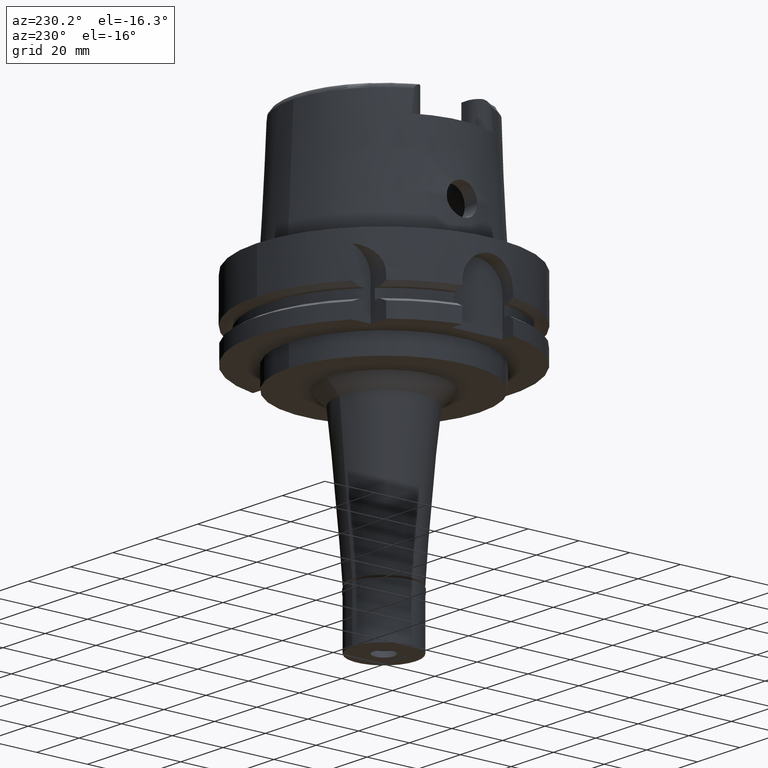
[diagram: clean part render]
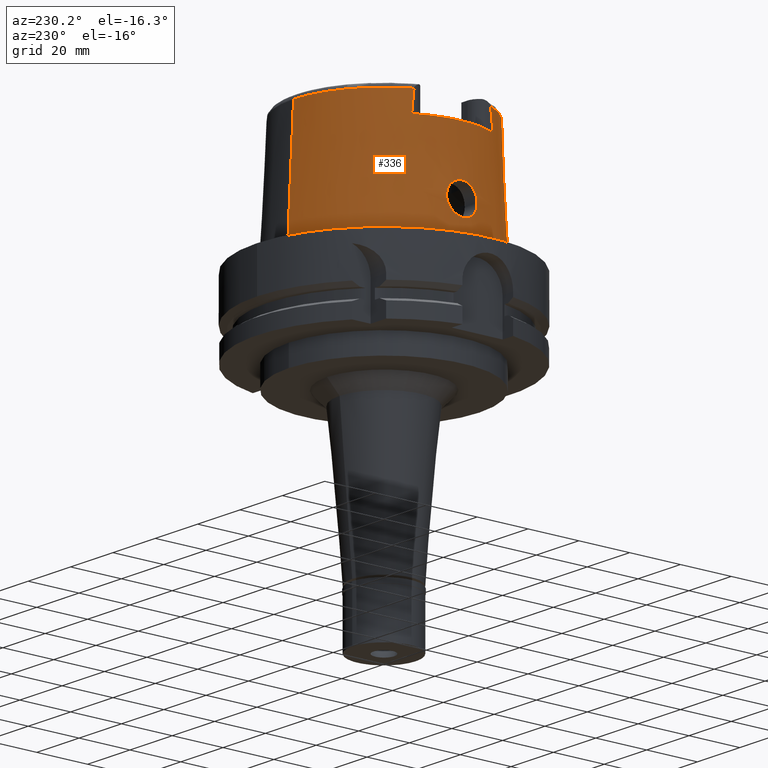
[diagram: same view with one face highlighted and labeled with its STEP entity id]
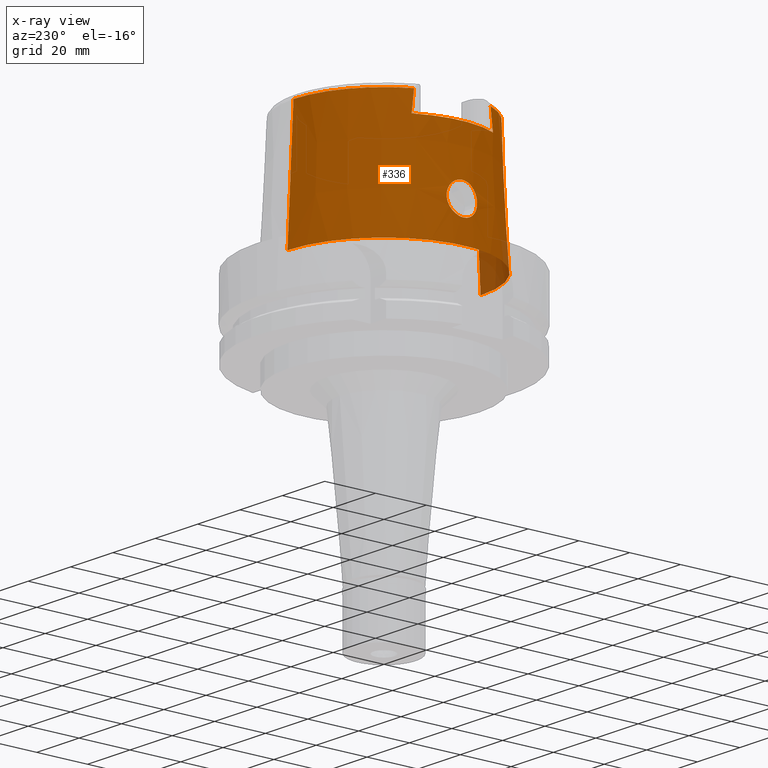
[diagram: x-ray of the same camera — body ghosted, the highlighted face saturated]
A machine part, auxiliary view. The second image highlights one B-rep face of the part: STEP entity #336.
The next image is the same camera in x-ray: the body ghosted, the highlighted face saturated — about 4% of this face is hidden behind the body in this view.
In plain terms, the highlighted conical surface has half-angle 2.862 deg.
Its self-contained STEP definition (entity closure, byte-faithful):
#7 = CARTESIAN_POINT ( 'NONE',  ( -36.73222397238689751, 5.952851843317341185, 15.77502274204015187 ) ) ;
#32 = CARTESIAN_POINT ( 'NONE',  ( -36.87024692486052402, 2.963107216956291534, 20.21838647945622469 ) ) ;
#78 = DIRECTION ( 'NONE',  ( 0.0000000000000000000, 0.0000000000000000000, -1.000000000000000000 ) ) ;
#131 = DIRECTION ( 'NONE',  ( 0.0000000000000000000, 0.0000000000000000000, -1.000000000000000000 ) ) ;
#137 = CARTESIAN_POINT ( 'NONE',  ( -37.45411032894990910, 2.329076586397910820, 9.470486692881159740 ) ) ;
#154 = EDGE_CURVE ( 'NONE', #3633, #4360, #4780, .T. ) ;
#166 = CARTESIAN_POINT ( 'NONE',  ( -37.16137327088202369, 4.585331932553313727, 11.12902026860914617 ) ) ;
#168 = CARTESIAN_POINT ( 'NONE',  ( -36.94998175922999906, -0.7275768783304984444, 20.99999999999998224 ) ) ;
#189 = EDGE_CURVE ( 'NONE', #1724, #1978, #1750, .T. ) ;
#234 = VERTEX_POINT ( 'NONE', #2886 ) ;
#259 = CARTESIAN_POINT ( 'NONE',  ( -37.07378927750864506, 5.030469763216260937, 11.72974398574473476 ) ) ;
#260 = CARTESIAN_POINT ( 'NONE',  ( -36.76839937084008625, -4.640091725944174073, 18.80537962105099226 ) ) ;
#284 = CARTESIAN_POINT ( 'NONE',  ( -36.76538821480236408, -5.999950589284440916, 14.96596387368550296 ) ) ;
#289 = CARTESIAN_POINT ( 'NONE',  ( -32.24999999999000266, 15.99793480980999938, 40.00000000000000000 ) ) ;
#292 = VERTEX_POINT ( 'NONE', #957 ) ;
#316 = CARTESIAN_POINT ( 'NONE',  ( -37.17914133187959180, -4.492299438688203139, 11.01777527074714413 ) ) ;
#336 = ADVANCED_FACE ( 'NONE', ( #1880, #3238 ), #1191, .T. ) ;
#350 = CARTESIAN_POINT ( 'NONE',  ( -36.71806516377513674, -5.583431881472558089, 17.19690449831312407 ) ) ;
#370 = CARTESIAN_POINT ( 'NONE',  ( -36.80999435884332627, 4.000992182659792284, 19.47314503020498933 ) ) ;
#377 = CARTESIAN_POINT ( 'NONE',  ( -36.71645835032150273, -5.675513334098447160, 16.95089833007983060 ) ) ;
#399 = CARTESIAN_POINT ( 'NONE',  ( -36.72708380242317361, 5.924749746795881400, 15.96722537825094612 ) ) ;
#434 = CARTESIAN_POINT ( 'NONE',  ( -36.88778919737365669, 2.610152271103167720, 20.40612584990347145 ) ) ;
#458 = CARTESIAN_POINT ( 'NONE',  ( -36.90165607839175266, 2.290595083130572807, 20.54555679129071066 ) ) ;
#552 = CARTESIAN_POINT ( 'NONE',  ( -37.21388712427825141, 4.285728611259719045, 10.80087120208853335 ) ) ;
#571 = CARTESIAN_POINT ( 'NONE',  ( -32.25000000000000000, 15.68473281745007242, 42.78334884632611335 ) ) ;
#634 = CARTESIAN_POINT ( 'NONE',  ( -36.94593836789520225, 0.7403560724001332360, 20.96707402515024654 ) ) ;
#649 = ORIENTED_EDGE ( 'NONE', *, *, #189, .F. ) ;
#672 = EDGE_CURVE ( 'NONE', #3633, #5378, #4613, .T. ) ;
#673 = CARTESIAN_POINT ( 'NONE',  ( -36.74861107662850657, -4.956256206563224964, 18.38728264032870996 ) ) ;
#701 = CARTESIAN_POINT ( 'NONE',  ( -36.87485578568156086, 2.872834853100405095, 20.26845260039856456 ) ) ;
#702 = CARTESIAN_POINT ( 'NONE',  ( -37.34547715369878773, -3.376910024075643335, 10.03665437514892922 ) ) ;
#731 = CARTESIAN_POINT ( 'NONE',  ( -36.82325382512017597, -5.928849360796538015, 14.05789465290355089 ) ) ;
#764 = CARTESIAN_POINT ( 'NONE',  ( -36.87052040339790437, -5.816984308525563918, 13.47751437886977044 ) ) ;
#770 = DIRECTION ( 'NONE',  ( 0.0000000000000000000, 0.0000000000000000000, 1.000000000000000000 ) ) ;
#792 = CARTESIAN_POINT ( 'NONE',  ( -36.71651147190863185, -5.721671603622781710, 16.80895093120795636 ) ) ;
#795 = CARTESIAN_POINT ( 'NONE',  ( -36.94998175923000616, 0.0000000000000000000, 21.00000000000000000 ) ) ;
#813 = CARTESIAN_POINT ( 'NONE',  ( -36.72203483975983573, 5.457215674029285424, 17.49414446089354414 ) ) ;
#835 = DIRECTION ( 'NONE',  ( 5.154182075151068004E-05, -0.04993927430816067631, -0.9987522546783135224 ) ) ;
#839 = VECTOR ( 'NONE', #835, 1000.000000000000227 ) ;
#840 = CARTESIAN_POINT ( 'NONE',  ( -36.85909546358855948, 3.172163527087960677, 20.09341556294793563 ) ) ;
#849 = CARTESIAN_POINT ( 'NONE',  ( -36.79130458637631307, -4.284925548454895150, 19.19995471801758313 ) ) ;
#872 = CARTESIAN_POINT ( 'NONE',  ( -36.94616164277810100, 5.562167962683551181, 12.75003754848569670 ) ) ;
#881 = CARTESIAN_POINT ( 'NONE',  ( -36.89910813406788037, -2.351562161418368824, 20.52003592923240305 ) ) ;
#902 = CARTESIAN_POINT ( 'NONE',  ( -36.80178370355619677, 4.127029021777901541, 19.35567122892741665 ) ) ;
#927 = CARTESIAN_POINT ( 'NONE',  ( -37.37902789548586213, 3.101562621163882483, 9.860011115134664550 ) ) ;
#936 = VERTEX_POINT ( 'NONE', #5330 ) ;
#957 = CARTESIAN_POINT ( 'NONE',  ( -37.55000165825000380, 1.571614468376999917E-13, 9.000000000000000000 ) ) ;
#981 = CARTESIAN_POINT ( 'NONE',  ( -37.12653753855521899, 4.772698272454461765, 11.35852183169556895 ) ) ;
#983 = EDGE_LOOP ( 'NONE', ( #4553, #4306 ) ) ;
#992 = CARTESIAN_POINT ( 'NONE',  ( -36.92875395472230338, 1.513412812140720654, 20.80957036496137746 ) ) ;
#1004 = CARTESIAN_POINT ( 'NONE',  ( -37.42939305294946450, 2.609398049164892708, 9.596396641083952517 ) ) ;
#1014 = LINE ( 'NONE', #2281, #5267 ) ;
#1067 = VERTEX_POINT ( 'NONE', #1131 ) ;
#1096 = CARTESIAN_POINT ( 'NONE',  ( -36.73018664405558553, -5.271004622528247197, 17.89294786533746162 ) ) ;
#1105 = CARTESIAN_POINT ( 'NONE',  ( -32.25000136840999687, 15.06443227128000117, 48.09991931309000535 ) ) ;
#1128 = CARTESIAN_POINT ( 'NONE',  ( -36.76073973878740730, 5.999766734502983923, 15.05800298344849786 ) ) ;
#1130 = CARTESIAN_POINT ( 'NONE',  ( -37.06283329661884096, -5.081388667905541112, 11.80356403590954351 ) ) ;
#1131 = CARTESIAN_POINT ( 'NONE',  ( 0.0000000000000000000, 38.00001658251999714, 1.023181539494999863E-12 ) ) ;
#1156 = CARTESIAN_POINT ( 'NONE',  ( -36.95852751307974415, -5.516639045516826378, 12.64048135459093736 ) ) ;
#1175 = B_SPLINE_CURVE_WITH_KNOTS ( 'NONE', 3,
 ( #1105, #4435, #571, #1452 ),
 .UNSPECIFIED., .F., .F.,
 ( 4, 4 ),
 ( 0.0000000000000000000, 1.000000000000000000 ),
 .UNSPECIFIED. ) ;
#1181 = CARTESIAN_POINT ( 'NONE',  ( -37.22574063560442426, -4.214384530066889845, 10.72928565813577428 ) ) ;
#1191 = CONICAL_SURFACE ( 'NONE', #4261, 36.79747973821000073, 0.04996004983832824653 ) ;
#1192 = ORIENTED_EDGE ( 'NONE', *, *, #5295, .T. ) ;
#1216 = CARTESIAN_POINT ( 'NONE',  ( -36.80914001600856267, -5.955815480468006129, 14.24908740679103047 ) ) ;
#1222 = ORIENTED_EDGE ( 'NONE', *, *, #672, .T. ) ;
#1239 = CARTESIAN_POINT ( 'NONE',  ( -36.75506156196929908, 5.997721863860697944, 15.17692254233485372 ) ) ;
#1268 = CARTESIAN_POINT ( 'NONE',  ( -36.75844081680122599, 5.999118688186413806, 15.10554704917737290 ) ) ;
#1297 = CARTESIAN_POINT ( 'NONE',  ( -36.76197872442156012, 5.999951483205046010, 15.03293113263376846 ) ) ;
#1309 = CARTESIAN_POINT ( 'NONE',  ( -36.84416996310689285, -3.433627093052130430, 19.92134582657802966 ) ) ;
#1334 = CARTESIAN_POINT ( 'NONE',  ( -37.04829448806614778, 5.147646633336384170, 11.91705264490105698 ) ) ;
#1360 = CARTESIAN_POINT ( 'NONE',  ( -37.21681431173084320, 4.268413451087587518, 10.78327152861438520 ) ) ;
#1380 = CARTESIAN_POINT ( 'NONE',  ( -37.19926369539058442, 4.371459071789489670, 10.88969431729168846 ) ) ;
#1411 = CARTESIAN_POINT ( 'NONE',  ( -37.45640736480521582, 2.301328483589966112, 9.458876450406730640 ) ) ;
#1415 = CARTESIAN_POINT ( 'NONE',  ( -36.81088283238016601, -3.979713635888096679, 19.49454454982750562 ) ) ;
#1439 = CARTESIAN_POINT ( 'NONE',  ( -36.88702964774192594, -2.627647762247636631, 20.39566145630359983 ) ) ;
#1444 = CARTESIAN_POINT ( 'NONE',  ( -36.90321622673614854, 2.252589718323464218, 20.56112789476859959 ) ) ;
#1452 = CARTESIAN_POINT ( 'NONE',  ( -32.24999999999000266, 15.99793480980999938, 40.00000000000000000 ) ) ;
#1454 = CARTESIAN_POINT ( 'NONE',  ( 0.0000000000000000000, 0.0000000000000000000, 24.04993926899999934 ) ) ;
#1522 = CARTESIAN_POINT ( 'NONE',  ( -37.55000165825001801, -0.3718779885888385262, 8.999999999999992895 ) ) ;
#1546 = CARTESIAN_POINT ( 'NONE',  ( -36.73210036387570199, 5.234123711820268809, 17.93896558200397706 ) ) ;
#1548 = CARTESIAN_POINT ( 'NONE',  ( -37.32407278596627265, -3.545300070120514402, 10.15468677506185990 ) ) ;
#1584 = CARTESIAN_POINT ( 'NONE',  ( -37.23094108370881372, -4.182301341435276321, 10.69782301262424085 ) ) ;
#1615 = CARTESIAN_POINT ( 'NONE',  ( -36.71772777302972202, -5.806634444795101047, 16.52391406234234950 ) ) ;
#1642 = CARTESIAN_POINT ( 'NONE',  ( -37.46539917342017390, -2.189494349266547513, 9.413656951236012205 ) ) ;
#1666 = CARTESIAN_POINT ( 'NONE',  ( -36.93938817957329235, 5.586604244410321662, 12.81115038929426397 ) ) ;
#1677 = CARTESIAN_POINT ( 'NONE',  ( -36.71887119525074183, -5.552477457300488695, 17.27376756973787408 ) ) ;
#1698 = CARTESIAN_POINT ( 'NONE',  ( -32.24999876011999334, -15.99794043148000000, 40.00000000000000000 ) ) ;
#1701 = CARTESIAN_POINT ( 'NONE',  ( -36.71936418535728563, 5.535364053710887688, 17.31513712874266631 ) ) ;
#1705 = ORIENTED_EDGE ( 'NONE', *, *, #3245, .T. ) ;
#1724 = VERTEX_POINT ( 'NONE', #4941 ) ;
#1728 = CARTESIAN_POINT ( 'NONE',  ( -36.85031012315031518, 3.329293841551034028, 19.99158831933071312 ) ) ;
#1750 = LINE ( 'NONE', #5088, #839 ) ;
#1753 = CARTESIAN_POINT ( 'NONE',  ( -37.03009072989203077, 5.228432817189635706, 12.05469673884362436 ) ) ;
#1799 = DIRECTION ( 'NONE',  ( -0.8958345712659759874, -0.4443876921390880197, 0.0000000000000000000 ) ) ;
#1806 = CARTESIAN_POINT ( 'NONE',  ( -37.27312626804616258, 3.933437812010391887, 10.44691527890669391 ) ) ;
#1839 = CARTESIAN_POINT ( 'NONE',  ( -36.94998175923000616, 0.3625466182059573494, 20.99999999999999645 ) ) ;
#1842 = CIRCLE ( 'NONE', #2910, 35.59494289391000166 ) ;
#1860 = CARTESIAN_POINT ( 'NONE',  ( -37.44569649307668158, 2.428452600350447188, 9.513112977037009088 ) ) ;
#1863 = CARTESIAN_POINT ( 'NONE',  ( -36.89414410805378708, -2.467552378224817211, 20.46952040299921549 ) ) ;
#1868 = CARTESIAN_POINT ( 'NONE',  ( -36.91472844102972317, 1.953171404261321076, 20.67485832053543859 ) ) ;
#1880 = FACE_OUTER_BOUND ( 'NONE', #4071, .T. ) ;
#1962 = DIRECTION ( 'NONE',  ( 0.0000000000000000000, -1.000000000000000000, 0.0000000000000000000 ) ) ;
#1974 = CARTESIAN_POINT ( 'NONE',  ( -36.73722786643385518, 5.139038034692392287, 18.10298572660164140 ) ) ;
#1977 = CARTESIAN_POINT ( 'NONE',  ( -36.71866310121173882, -5.560074601496034497, 17.25512967119987451 ) ) ;
#1978 = VERTEX_POINT ( 'NONE', #4362 ) ;
#2001 = CARTESIAN_POINT ( 'NONE',  ( -36.90859832350684400, -5.700978078550608785, 13.08128813520525391 ) ) ;
#2038 = CARTESIAN_POINT ( 'NONE',  ( -36.71879165010436452, -5.555343507820373006, 17.26675934281637481 ) ) ;
#2066 = CARTESIAN_POINT ( 'NONE',  ( -36.71847461403668689, -5.567142385440791763, 17.23767766247463129 ) ) ;
#2085 = CARTESIAN_POINT ( 'NONE',  ( -36.86922923425112231, 5.814880337016135492, 13.50718999263125930 ) ) ;
#2092 = CARTESIAN_POINT ( 'NONE',  ( -37.22841171980094543, -4.197936726570321575, 10.71311528928450052 ) ) ;
#2113 = CARTESIAN_POINT ( 'NONE',  ( -36.77254963823034473, 4.560917777834842646, 18.92325075688814451 ) ) ;
#2149 = CARTESIAN_POINT ( 'NONE',  ( -36.72101992558232553, 5.484351520498480070, 17.43417151927837949 ) ) ;
#2155 = CARTESIAN_POINT ( 'NONE',  ( -36.79205701038050336, -4.273356062900307784, 19.21171942369714003 ) ) ;
#2175 = CARTESIAN_POINT ( 'NONE',  ( -36.90704670137129995, 5.697761828328483880, 13.11685132176113200 ) ) ;
#2197 = CARTESIAN_POINT ( 'NONE',  ( -32.24999876011999334, -15.99794043148000000, 40.00000000000000000 ) ) ;
#2221 = ORIENTED_EDGE ( 'NONE', *, *, #154, .F. ) ;
#2250 = CARTESIAN_POINT ( 'NONE',  ( -36.93367605878810167, -1.520464104773860514, 20.86598654696328126 ) ) ;
#2258 = CARTESIAN_POINT ( 'NONE',  ( -37.51012589475315195, -1.514894047665385157, 9.191007608119377892 ) ) ;
#2268 = CARTESIAN_POINT ( 'NONE',  ( -37.21807447347217135, 4.260941331886582084, 10.77571583184690063 ) ) ;
#2272 = CARTESIAN_POINT ( 'NONE',  ( -36.78999989929346981, -4.304998533114974713, 19.17937725254343917 ) ) ;
#2281 = CARTESIAN_POINT ( 'NONE',  ( 0.002482252536764999965, 35.59494263424999616, 48.09987853799000135 ) ) ;
#2304 = CARTESIAN_POINT ( 'NONE',  ( -36.89713083411059102, -2.398072351477140263, 20.49999002327387032 ) ) ;
#2316 = EDGE_CURVE ( 'NONE', #234, #5378, #1175, .T. ) ;
#2394 = CARTESIAN_POINT ( 'NONE',  ( -36.75586120425300152, -4.838476563656366913, 18.55451905113634226 ) ) ;
#2420 = CARTESIAN_POINT ( 'NONE',  ( -37.24837122765304542, -4.072499423737104607, 10.59312802661479047 ) ) ;
#2447 = CARTESIAN_POINT ( 'NONE',  ( -36.73133178352323824, -5.964993020050335382, 15.75624505369412809 ) ) ;
#2453 = DIRECTION ( 'NONE',  ( 0.0000000000000000000, 1.000000000000000000, 0.0000000000000000000 ) ) ;
#2479 = CARTESIAN_POINT ( 'NONE',  ( -36.77257599991601467, -5.997923006050962513, 14.83101755382365106 ) ) ;
#2500 = CARTESIAN_POINT ( 'NONE',  ( -36.71608749396589388, 5.811515009047022673, 16.54241086536090322 ) ) ;
#2506 = CARTESIAN_POINT ( 'NONE',  ( -37.09753770243796822, -4.918387498628393750, 11.56213833465504770 ) ) ;
#2525 = CARTESIAN_POINT ( 'NONE',  ( -36.90196549997315145, 2.283101198150219169, 20.54864780068753305 ) ) ;
#2532 = CARTESIAN_POINT ( 'NONE',  ( -36.80166634660408675, -4.125663256743054674, 19.36095792530163706 ) ) ;
#2544 = AXIS2_PLACEMENT_3D ( 'NONE', #2683, #78, #1799 ) ;
#2556 = CARTESIAN_POINT ( 'NONE',  ( -36.89522057747372941, 2.445944620868181207, 20.48123510270571757 ) ) ;
#2570 = CARTESIAN_POINT ( 'NONE',  ( -36.78361071447741892, -4.403467711593224365, 19.07616304337773272 ) ) ;
#2592 = CARTESIAN_POINT ( 'NONE',  ( -36.71961842533482212, 5.527048233546220324, 17.33492033184241876 ) ) ;
#2614 = CARTESIAN_POINT ( 'NONE',  ( -37.20949755358726918, 4.311619878491447011, 10.82735086826702009 ) ) ;
#2635 = CARTESIAN_POINT ( 'NONE',  ( 0.0000000000000000000, 0.0000000000000000000, 48.09987853799000135 ) ) ;
#2638 = EDGE_CURVE ( 'NONE', #292, #5353, #5466, .T. ) ;
#2681 = CARTESIAN_POINT ( 'NONE',  ( -37.51962012415715009, -1.324013109702262714, 9.144688065178064207 ) ) ;
#2683 = CARTESIAN_POINT ( 'NONE',  ( 0.0000000000000000000, 0.0000000000000000000, 40.00000000000000000 ) ) ;
#2699 = CARTESIAN_POINT ( 'NONE',  ( -36.91965632421899812, 1.806424352912190834, 20.72251802955246092 ) ) ;
#2711 = CARTESIAN_POINT ( 'NONE',  ( -37.45162856363509007, 2.358807808867366074, 9.483040814561384479 ) ) ;
#2753 = EDGE_CURVE ( 'NONE', #1724, #4360, #4003, .T. ) ;
#2801 = CARTESIAN_POINT ( 'NONE',  ( -36.94998175923000616, 0.0000000000000000000, 21.00000000000000000 ) ) ;
#2803 = CARTESIAN_POINT ( 'NONE',  ( -37.43523288464061238, -2.562769484600277092, 9.565736173818814692 ) ) ;
#2806 = CARTESIAN_POINT ( 'NONE',  ( -32.24999491821000674, -15.06448486630999817, 48.09973212705000378 ) ) ;
#2837 = CARTESIAN_POINT ( 'NONE',  ( -36.81702162705455095, 3.889292314799506212, 19.56980273167460282 ) ) ;
#2841 = CARTESIAN_POINT ( 'NONE',  ( -37.40393488765607799, -2.880847438335509825, 9.722310880057538185 ) ) ;
#2867 = CARTESIAN_POINT ( 'NONE',  ( -37.47173360460065084, -2.107254871424366183, 9.381823001253822625 ) ) ;
#2886 = CARTESIAN_POINT ( 'NONE',  ( -32.25000136840999687, 15.06443227128000117, 48.09991931309000535 ) ) ;
#2897 = CARTESIAN_POINT ( 'NONE',  ( -37.13275019788188303, -4.742155371839757549, 11.32281637125038820 ) ) ;
#2910 = AXIS2_PLACEMENT_3D ( 'NONE', #2635, #131, #3536 ) ;
#2932 = CARTESIAN_POINT ( 'NONE',  ( -36.79043187781257274, -5.982377159260291677, 14.53088864395934188 ) ) ;
#2953 = CARTESIAN_POINT ( 'NONE',  ( -36.94752609826166179, 5.557209258651035100, 12.73781770542453273 ) ) ;
#2976 = CARTESIAN_POINT ( 'NONE',  ( -32.24999491821000674, -15.06448486630999817, 48.09973212705000378 ) ) ;
#2979 = CARTESIAN_POINT ( 'NONE',  ( -37.01854345622303555, 5.277865319407808897, 12.14450499817312235 ) ) ;
#3010 = CARTESIAN_POINT ( 'NONE',  ( -36.72001239501334169, 5.514466949759134984, 17.36462817078562537 ) ) ;
#3042 = CARTESIAN_POINT ( 'NONE',  ( -36.84040410914284536, 3.503094117755390258, 19.87515112254886773 ) ) ;
#3061 = ORIENTED_EDGE ( 'NONE', *, *, #4619, .T. ) ;
#3089 = CARTESIAN_POINT ( 'NONE',  ( -37.55000165825001801, 0.7490045158701276184, 9.000000000000021316 ) ) ;
#3119 = CARTESIAN_POINT ( 'NONE',  ( -36.82496616798105293, -3.751439363173746155, 19.68363806649755787 ) ) ;
#3137 = CARTESIAN_POINT ( 'NONE',  ( -37.07896120338859447, 5.006090730705397007, 11.69255264792201743 ) ) ;
#3146 = CARTESIAN_POINT ( 'NONE',  ( -36.90246697526566777, 2.270897491440002636, 20.55365357944129912 ) ) ;
#3161 = CARTESIAN_POINT ( 'NONE',  ( 0.0000000000000000000, 0.0000000000000000000, 48.09987853799000135 ) ) ;
#3238 = FACE_BOUND ( 'NONE', #983, .T. ) ;
#3242 = DIRECTION ( 'NONE',  ( 0.0000000000000000000, -1.000000000000000000, 0.0000000000000000000 ) ) ;
#3245 = EDGE_CURVE ( 'NONE', #234, #936, #1842, .T. ) ;
#3254 = CARTESIAN_POINT ( 'NONE',  ( -36.72602315320609989, 5.361303575633339591, 17.69533233583764087 ) ) ;
#3256 = CARTESIAN_POINT ( 'NONE',  ( -37.27694752357106722, -3.883067789143832549, 10.42458816709989478 ) ) ;
#3291 = CARTESIAN_POINT ( 'NONE',  ( -37.45980462457018234, -2.259825013879440903, 9.441832061303578882 ) ) ;
#3322 = CARTESIAN_POINT ( 'NONE',  ( -37.28908854974737608, -3.798549691665119799, 10.35429516126023586 ) ) ;
#3348 = CARTESIAN_POINT ( 'NONE',  ( -36.97182179461280782, -5.466220683841039651, 12.52515547080414038 ) ) ;
#3373 = CARTESIAN_POINT ( 'NONE',  ( -36.94411968350882347, 5.569571401826264534, 12.76836872843770365 ) ) ;
#3407 = CARTESIAN_POINT ( 'NONE',  ( -36.79591394904270629, 4.215247895684406387, 19.26987547956571589 ) ) ;
#3430 = CARTESIAN_POINT ( 'NONE',  ( -32.25000000000000000, -15.37363593502418802, 45.48304330287894715 ) ) ;
#3433 = CARTESIAN_POINT ( 'NONE',  ( -36.79767533198576501, 4.188949096182706278, 19.29578462195993893 ) ) ;
#3440 = CARTESIAN_POINT ( 'NONE',  ( -36.90004555162668964, -2.329277557942172283, 20.52948196078194698 ) ) ;
#3463 = CARTESIAN_POINT ( 'NONE',  ( -37.06887968109892029, 5.053476769917596201, 11.76522723937576309 ) ) ;
#3518 = CARTESIAN_POINT ( 'NONE',  ( -37.51912519030945958, 1.534301940799488451, 9.142228349292210510 ) ) ;
#3536 = DIRECTION ( 'NONE',  ( -0.9060276961631030801, 0.4232183996300014628, 0.0000000000000000000 ) ) ;
#3541 = CARTESIAN_POINT ( 'NONE',  ( -37.07708073444158003, 5.014980849851796485, 11.70604075419480417 ) ) ;
#3559 = CARTESIAN_POINT ( 'NONE',  ( -37.54240627472679392, -0.7520917333850056785, 9.034674166526976080 ) ) ;
#3580 = CARTESIAN_POINT ( 'NONE',  ( -36.90831587508467493, 2.124341567055277658, 20.61177115740531107 ) ) ;
#3633 = VERTEX_POINT ( 'NONE', #2197 ) ;
#3678 = CARTESIAN_POINT ( 'NONE',  ( -36.85447656705166253, 3.255436971716498373, 20.04019404698694373 ) ) ;
#3681 = CARTESIAN_POINT ( 'NONE',  ( -36.77285592222748534, -4.570347365169773468, 18.88899252654780270 ) ) ;
#3709 = CARTESIAN_POINT ( 'NONE',  ( -37.48377940815699105, -1.942223886352161477, 9.321501445207053038 ) ) ;
#3748 = CARTESIAN_POINT ( 'NONE',  ( -36.76649961479878925, -5.999786951317581440, 14.94458515179831970 ) ) ;
#3773 = CARTESIAN_POINT ( 'NONE',  ( -37.46074663014387340, -2.248112901988191137, 9.437084549624879415 ) ) ;
#3792 = CARTESIAN_POINT ( 'NONE',  ( -36.72426642351084070, 5.401124342672683376, 17.61451598841853894 ) ) ;
#3801 = CARTESIAN_POINT ( 'NONE',  ( -37.22672173021050668, -4.208355043705078735, 10.72334229691266572 ) ) ;
#3826 = CARTESIAN_POINT ( 'NONE',  ( -36.85245517258454129, 3.291387817632920765, 20.01666953980453201 ) ) ;
#3838 = CARTESIAN_POINT ( 'NONE',  ( -36.86765496294069067, -3.023656361748806809, 20.18623123125564334 ) ) ;
#3858 = CARTESIAN_POINT ( 'NONE',  ( -36.71926214878530459, 5.538767348877264851, 17.30699241991181481 ) ) ;
#3864 = CARTESIAN_POINT ( 'NONE',  ( -36.83926500936254200, -3.515568088646244593, 19.86318248141866860 ) ) ;
#3884 = CARTESIAN_POINT ( 'NONE',  ( -36.79473954879843944, 4.232727124566890708, 19.25254894410682382 ) ) ;
#3911 = CARTESIAN_POINT ( 'NONE',  ( -37.31962050929661956, 3.599574927058865281, 10.18338645284368482 ) ) ;
#3924 = AXIS2_PLACEMENT_3D ( 'NONE', #5535, #770, #2453 ) ;
#3937 = CARTESIAN_POINT ( 'NONE',  ( -37.45575138346225685, 2.309282289068757876, 9.462190824134093958 ) ) ;
#3960 = CARTESIAN_POINT ( 'NONE',  ( -37.42164473351927256, 2.690640858122998580, 9.636330374040097624 ) ) ;
#3963 = CARTESIAN_POINT ( 'NONE',  ( -36.88068222545278019, -2.761308457439320740, 20.32776206745130310 ) ) ;
#3971 = CARTESIAN_POINT ( 'NONE',  ( -37.49303628182590842, -1.799986882915197262, 9.275502522711887465 ) ) ;
#3988 = CARTESIAN_POINT ( 'NONE',  ( -37.39710802826787273, 2.935931224689854346, 9.764132528484525508 ) ) ;
#4003 = CIRCLE ( 'NONE', #4902, 35.59494289391000166 ) ;
#4028 = B_SPLINE_CURVE_WITH_KNOTS ( 'NONE', 3,
 ( #2801, #1839, #634, #4846, #992, #2699, #1868, #3580, #5297, #1444, #3146, #2525, #458, #2556, #434, #701, #32, #4700, #840, #3678, #3826, #5404, #1728, #3042, #4763, #2837, #370, #902, #3433, #3407, #3884, #4564, #2113, #4287, #1974, #1546, #3254, #3792, #813, #2149, #3010, #2592, #1701, #3858, #4674, #2500, #399, #7, #4979, #5147, #1239, #1268, #1128, #1297, #5183, #4223, #5092, #2085, #4734, #2175, #4317, #5519, #1666, #3373, #872, #2953, #4252, #5553, #5120, #2979, #1753, #1334, #4109, #3463, #259, #3541, #3137, #4414, #981, #166, #4368, #1380, #2614, #552, #1360, #2268, #1806, #3911, #927, #3988, #3960, #1004, #4858, #1860, #2711, #137, #3937, #1411, #3518, #3089, #4394 ),
 .UNSPECIFIED., .F., .F.,
 ( 4, 2, 2, 1, 1, 1, 1, 2, 2, 2, 2, 1, 1, 2, 2, 2, 1, 1, 1, 2, 2, 2, 2, 2, 1, 1, 2, 2, 2, 2, 1, 1, 2, 2, 2, 2, 2, 1, 1, 1, 2, 2, 2, 2, 1, 1, 2, 2, 2, 1, 1, 1, 2, 2, 2, 2, 2, 1, 1, 2, 2, 4 ),
 ( 0.0000000000000000000, 0.06249999999999250599, 0.09374999999998880063, 0.1093749999999869410, 0.1171874999999860251, 0.1210937499999854977, 0.1230468749999853728, 0.1240234374999853867, 0.1249999999999854006, 0.1562499999999844846, 0.1718749999999838740, 0.1796874999999834299, 0.1835937499999833189, 0.1855468749999832911, 0.1874999999999832911, 0.2187499999999822364, 0.2343749999999817091, 0.2421874999999812927, 0.2460937499999808764, 0.2480468749999808209, 0.2499999999999807931, 0.3124999999999689693, 0.3437499999999631961, 0.3593749999999603095, 0.3671874999999590883, 0.3710937499999581446, 0.3730468749999576450, 0.3749999999999571454, 0.4374999999999498179, 0.4687499999999464317, 0.4843749999999445999, 0.4921874999999436562, 0.4960937499999433231, 0.4999999999999430456, 0.5624999999999387157, 0.5937499999999364952, 0.6093749999999354960, 0.6171874999999350520, 0.6210937499999347189, 0.6230468749999347189, 0.6240234374999347189, 0.6249999999999347189, 0.6562499999999383826, 0.6718749999999402700, 0.6796874999999412692, 0.6835937499999417133, 0.6855468749999419353, 0.6874999999999420464, 0.7187499999999453770, 0.7343749999999470424, 0.7421874999999478195, 0.7460937499999482636, 0.7480468749999485967, 0.7499999999999489297, 0.8124999999999610312, 0.8437499999999672484, 0.8593749999999702460, 0.8671874999999718003, 0.8710937499999726885, 0.8730468749999730216, 0.8749999999999733546, 1.000000000000000000 ),
 .UNSPECIFIED. ) ;
#4071 = EDGE_LOOP ( 'NONE', ( #4459, #1705, #3061, #1192, #649, #5501, #2221, #1222 ) ) ;
#4091 = CIRCLE ( 'NONE', #3924, 38.00001658251999714 ) ;
#4109 = CARTESIAN_POINT ( 'NONE',  ( -37.05761707907085167, 5.105594053132537447, 11.84749936614780452 ) ) ;
#4110 = CARTESIAN_POINT ( 'NONE',  ( -37.20216162535480464, -4.358951414646812239, 10.87223903231064170 ) ) ;
#4137 = CARTESIAN_POINT ( 'NONE',  ( -36.76889938665229351, -5.999196654542156892, 14.89923409935832233 ) ) ;
#4170 = CARTESIAN_POINT ( 'NONE',  ( -36.72001871770627446, -5.853464933448458751, 16.33237020024870034 ) ) ;
#4202 = CARTESIAN_POINT ( 'NONE',  ( -36.78460626099247577, -5.988917572003810363, 14.62399460958585706 ) ) ;
#4223 = CARTESIAN_POINT ( 'NONE',  ( -36.80568762764040258, 5.969076309292177918, 14.27705447102812997 ) ) ;
#4231 = CARTESIAN_POINT ( 'NONE',  ( -36.99062255150662537, -5.392497235647162768, 12.36589418283824315 ) ) ;
#4252 = CARTESIAN_POINT ( 'NONE',  ( -36.94835749969507788, 5.554179453263887289, 12.73039266995945695 ) ) ;
#4261 = AXIS2_PLACEMENT_3D ( 'NONE', #1454, #4512, #1962 ) ;
#4287 = CARTESIAN_POINT ( 'NONE',  ( -36.75583846044354885, 4.819639287523747484, 18.59499742756398888 ) ) ;
#4298 = CARTESIAN_POINT ( 'NONE',  ( -36.85852689735423837, -3.191914326175044447, 20.08423464938755387 ) ) ;
#4306 = ORIENTED_EDGE ( 'NONE', *, *, #2638, .F. ) ;
#4317 = CARTESIAN_POINT ( 'NONE',  ( -36.92228641770896047, 5.646440863839167434, 12.97012555305883730 ) ) ;
#4360 = VERTEX_POINT ( 'NONE', #2806 ) ;
#4362 = CARTESIAN_POINT ( 'NONE',  ( 0.0000000000000000000, -38.00001658251999714, 6.892264536873000076E-13 ) ) ;
#4368 = CARTESIAN_POINT ( 'NONE',  ( -37.17882987265932826, 4.488815075938301646, 11.01658294362115242 ) ) ;
#4394 = CARTESIAN_POINT ( 'NONE',  ( -37.55000165825000380, 1.571614468376999917E-13, 9.000000000000000000 ) ) ;
#4414 = CARTESIAN_POINT ( 'NONE',  ( -37.10341701197449282, 4.890047845633578305, 11.51769557363411778 ) ) ;
#4435 = CARTESIAN_POINT ( 'NONE',  ( -32.25000000000000000, 15.37357338426007125, 45.48332195068944372 ) ) ;
#4459 = ORIENTED_EDGE ( 'NONE', *, *, #2316, .F. ) ;
#4500 = DIRECTION ( 'NONE',  ( -5.154182075159067383E-05, 0.04993927430816067631, -0.9987522546783135224 ) ) ;
#4512 = DIRECTION ( 'NONE',  ( 0.0000000000000000000, 0.0000000000000000000, -1.000000000000000000 ) ) ;
#4533 = CARTESIAN_POINT ( 'NONE',  ( -37.25801656315155697, -4.009425975663113206, 10.53595972580779083 ) ) ;
#4553 = ORIENTED_EDGE ( 'NONE', *, *, #4772, .F. ) ;
#4564 = CARTESIAN_POINT ( 'NONE',  ( -36.79422165903395125, 4.240413996032502020, 19.24488851042760729 ) ) ;
#4565 = CARTESIAN_POINT ( 'NONE',  ( -37.45922618364850365, -2.266980808348378673, 9.444748233686445005 ) ) ;
#4578 = DIRECTION ( 'NONE',  ( 0.0000000000000000000, 0.0000000000000000000, -1.000000000000000000 ) ) ;
#4587 = CARTESIAN_POINT ( 'NONE',  ( -36.74479413645109105, -6.000641580302145783, 15.37023877774280756 ) ) ;
#4613 = CIRCLE ( 'NONE', #2544, 35.99995025243999436 ) ;
#4615 = CARTESIAN_POINT ( 'NONE',  ( -37.00702300947069290, -5.324701733821808780, 12.23280588775251942 ) ) ;
#4619 = EDGE_CURVE ( 'NONE', #936, #1067, #1014, .T. ) ;
#4653 = CARTESIAN_POINT ( 'NONE',  ( -36.77648347963019404, -5.995465017172543654, 14.76224453249326807 ) ) ;
#4674 = CARTESIAN_POINT ( 'NONE',  ( -36.71465555690633664, 5.697341203292805467, 16.92402188791585615 ) ) ;
#4700 = CARTESIAN_POINT ( 'NONE',  ( -36.86288704824347917, 3.101913162251400902, 20.13624621595276665 ) ) ;
#4734 = CARTESIAN_POINT ( 'NONE',  ( -36.89729000140052761, 5.729111152334840362, 13.21461091994718196 ) ) ;
#4744 = CARTESIAN_POINT ( 'NONE',  ( -36.82970371433746237, -3.673790648868464626, 19.74478925788827155 ) ) ;
#4763 = CARTESIAN_POINT ( 'NONE',  ( -36.83106224838284248, 3.661271963989594092, 19.75750506791328576 ) ) ;
#4772 = EDGE_CURVE ( 'NONE', #5353, #292, #4028, .T. ) ;
#4780 = B_SPLINE_CURVE_WITH_KNOTS ( 'NONE', 3,
 ( #1698, #5514, #3430, #2976 ),
 .UNSPECIFIED., .F., .F.,
 ( 4, 4 ),
 ( 0.0000000000000000000, 1.000000000000000000 ),
 .UNSPECIFIED. ) ;
#4846 = CARTESIAN_POINT ( 'NONE',  ( -36.93380819389080472, 1.318728028266768160, 20.85657589990552907 ) ) ;
#4858 = CARTESIAN_POINT ( 'NONE',  ( -37.44036965861434396, 2.488591753617011015, 9.540248820349230385 ) ) ;
#4861 = CARTESIAN_POINT ( 'NONE',  ( -36.78805586066260247, -4.334923976444520655, 19.14847782112115837 ) ) ;
#4902 = AXIS2_PLACEMENT_3D ( 'NONE', #3161, #4578, #3242 ) ;
#4927 = CARTESIAN_POINT ( 'NONE',  ( -37.55000165825000380, 1.571614468376999917E-13, 9.000000000000000000 ) ) ;
#4941 = CARTESIAN_POINT ( 'NONE',  ( 1.065814103639999922E-14, -35.59494289391000166, 48.09987853799000135 ) ) ;
#4950 = CARTESIAN_POINT ( 'NONE',  ( -36.72233828940780143, -5.429373990799886585, 17.57367172675139244 ) ) ;
#4979 = CARTESIAN_POINT ( 'NONE',  ( -36.74214632804947200, 5.980942110350560448, 15.48745030764880681 ) ) ;
#4983 = CARTESIAN_POINT ( 'NONE',  ( -36.95603341079165460, -5.525948056300959088, 12.66234917388962877 ) ) ;
#5013 = CARTESIAN_POINT ( 'NONE',  ( -36.96383570824352205, -5.496631871768234312, 12.59424176966689046 ) ) ;
#5039 = CARTESIAN_POINT ( 'NONE',  ( -37.10941830703129085, -4.860389480711517329, 11.48057801535512290 ) ) ;
#5067 = CARTESIAN_POINT ( 'NONE',  ( -37.04020462337702213, -5.183334897294305854, 11.97142169020190750 ) ) ;
#5088 = CARTESIAN_POINT ( 'NONE',  ( -0.002482252536761000127, -35.59494263424999616, 48.09987853799000135 ) ) ;
#5092 = CARTESIAN_POINT ( 'NONE',  ( -36.85213449983548628, 5.861015145817646044, 13.70129602429978455 ) ) ;
#5120 = CARTESIAN_POINT ( 'NONE',  ( -36.98566733055731248, 5.414274580056861019, 12.40683843295216171 ) ) ;
#5147 = CARTESIAN_POINT ( 'NONE',  ( -36.74766053106000641, 5.991473738471142951, 15.34384544696336050 ) ) ;
#5155 = CARTESIAN_POINT ( 'NONE',  ( -36.94998175923000616, 0.0000000000000000000, 21.00000000000000000 ) ) ;
#5183 = CARTESIAN_POINT ( 'NONE',  ( -36.78117282091282902, 6.000619485466274661, 14.65194191540598823 ) ) ;
#5267 = VECTOR ( 'NONE', #4500, 1000.000000000000227 ) ;
#5295 = EDGE_CURVE ( 'NONE', #1067, #1978, #4091, .T. ) ;
#5297 = CARTESIAN_POINT ( 'NONE',  ( -36.90494374988945481, 2.209857073222524004, 20.57832791419664176 ) ) ;
#5330 = CARTESIAN_POINT ( 'NONE',  ( 0.0000000000000000000, 35.59494289391000166, 48.09987853799000135 ) ) ;
#5353 = VERTEX_POINT ( 'NONE', #795 ) ;
#5378 = VERTEX_POINT ( 'NONE', #289 ) ;
#5404 = CARTESIAN_POINT ( 'NONE',  ( -36.85109827241090841, 3.315411112297707241, 20.00082555125829131 ) ) ;
#5405 = CARTESIAN_POINT ( 'NONE',  ( -36.77995649309617221, -4.460042072845570083, 19.01386461977881481 ) ) ;
#5435 = CARTESIAN_POINT ( 'NONE',  ( -37.23680358948277558, -4.145765643706830872, 10.66247784837928769 ) ) ;
#5466 = B_SPLINE_CURVE_WITH_KNOTS ( 'NONE', 3,
 ( #4927, #1522, #3559, #2681, #2258, #3971, #3709, #2867, #1642, #5468, #3773, #3291, #4565, #2803, #2841, #702, #1548, #3322, #3256, #4533, #2420, #5435, #1584, #2092, #3801, #1181, #4110, #316, #5497, #2897, #5039, #2506, #1130, #5067, #4615, #4231, #3348, #5013, #1156, #4983, #2001, #764, #731, #1216, #2932, #4202, #4653, #2479, #4137, #3748, #284, #4587, #2447, #4170, #1615, #792, #377, #5529, #350, #2066, #1977, #2038, #1677, #4950, #1096, #673, #2394, #260, #3681, #5405, #2570, #4861, #2272, #849, #2155, #2532, #1415, #3119, #4744, #3864, #1309, #4298, #3838, #3963, #1439, #1863, #2304, #881, #3440, #2250, #168, #5155 ),
 .UNSPECIFIED., .F., .F.,
 ( 4, 2, 2, 1, 1, 1, 1, 2, 2, 2, 2, 2, 1, 1, 1, 2, 2, 2, 2, 2, 2, 1, 1, 2, 2, 2, 2, 2, 1, 2, 2, 2, 2, 1, 1, 1, 1, 2, 2, 2, 2, 2, 1, 1, 2, 2, 2, 2, 2, 2, 1, 1, 2, 2, 4 ),
 ( 0.0000000000000000000, 0.06249999999997425670, 0.09374999999996139199, 0.1093749999999549527, 0.1171874999999516775, 0.1210937499999499706, 0.1230468749999491240, 0.1240234374999487077, 0.1249999999999482914, 0.1874999999999250877, 0.2187499999999134581, 0.2343749999999076850, 0.2421874999999048539, 0.2460937499999035216, 0.2480468749999028277, 0.2490234374999026334, 0.2499999999999024669, 0.2812499999999000244, 0.2968749999998986921, 0.3124999999998973599, 0.3437499999998946953, 0.3593749999998932521, 0.3671874999998925859, 0.3710937499998920863, 0.3749999999998915867, 0.4374999999998842037, 0.4687499999998805955, 0.4843749999998788192, 0.4921874999998779310, 0.4960937499998774869, 0.4999999999998769873, 0.5624999999998704370, 0.5937499999998668843, 0.6093749999998651079, 0.6171874999998639977, 0.6210937499998637756, 0.6230468749998633315, 0.6240234374998634426, 0.6249999999998634426, 0.6874999999998779865, 0.7187499999998855360, 0.7343749999998895328, 0.7421874999998916422, 0.7460937499998928635, 0.7480468749998935296, 0.7499999999998940847, 0.7812499999999066302, 0.7968749999999128475, 0.8124999999999190647, 0.8437499999999316103, 0.8593749999999379385, 0.8671874999999411582, 0.8710937499999428235, 0.8749999999999445999, 1.000000000000000000 ),
 .UNSPECIFIED. ) ;
#5468 = CARTESIAN_POINT ( 'NONE',  ( -37.46215407547934717, -2.230539048100680599, 9.429993290006407847 ) ) ;
#5497 = CARTESIAN_POINT ( 'NONE',  ( -37.14437719363525758, -4.681094012475388588, 11.24539271605605784 ) ) ;
#5501 = ORIENTED_EDGE ( 'NONE', *, *, #2753, .T. ) ;
#5514 = CARTESIAN_POINT ( 'NONE',  ( -32.25000000000000000, -15.68478779008085411, 42.78313259386227685 ) ) ;
#5519 = CARTESIAN_POINT ( 'NONE',  ( -36.93005744247314937, 5.619706334602263986, 12.89674139995160473 ) ) ;
#5529 = CARTESIAN_POINT ( 'NONE',  ( -36.71736767583998784, -5.615202874428542046, 17.11515650663567456 ) ) ;
#5535 = CARTESIAN_POINT ( 'NONE',  ( 0.0000000000000000000, 0.0000000000000000000, 1.023181539494999863E-12 ) ) ;
#5553 = CARTESIAN_POINT ( 'NONE',  ( -36.96610417390183301, 5.489382704764880216, 12.57221230081498931 ) ) ;